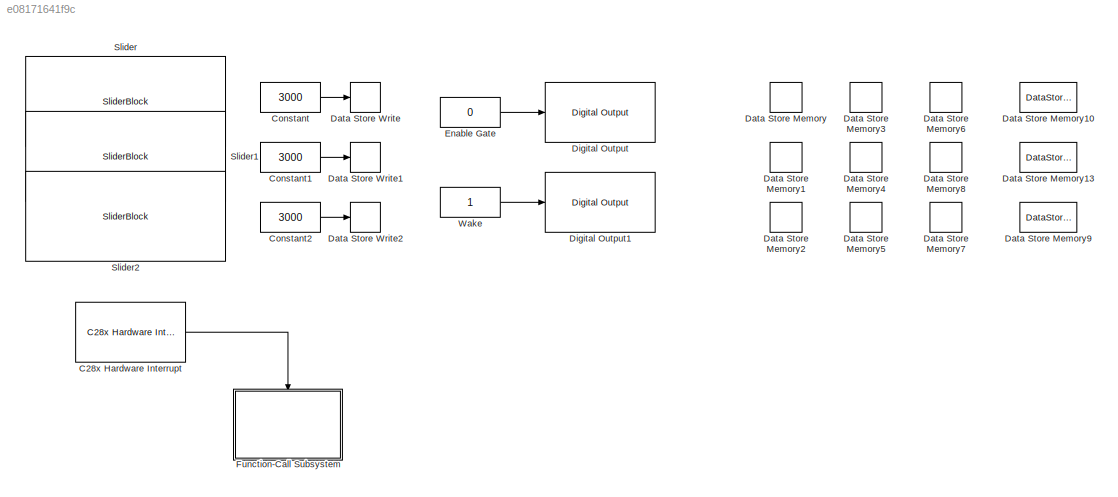
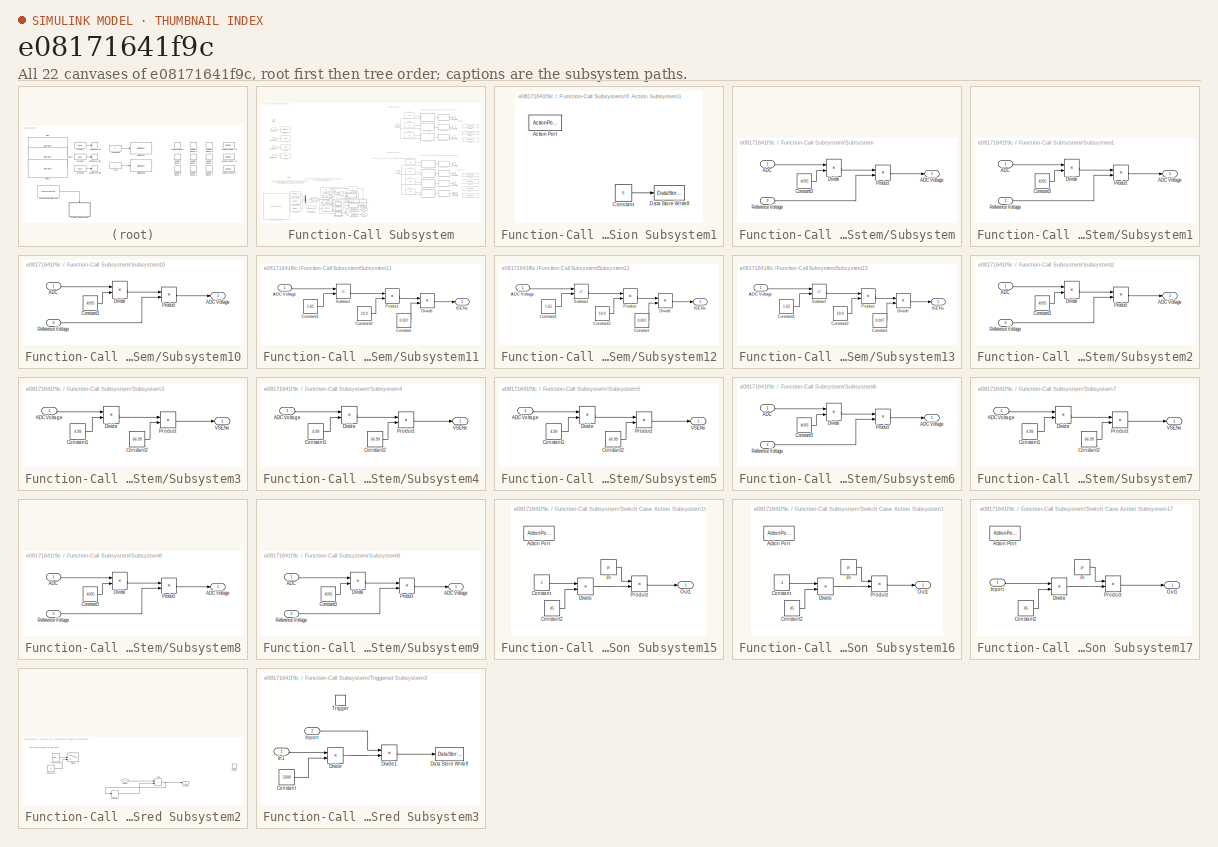
[diagram: thumbnail index - all 22 canvases of the model, root first then tree order]
MODEL slx_e08171641f9c
KIND model
CONFIG AbsTol = auto
CONFIG EnableMultiTasking = on
CONFIG FixedStep = auto
CONFIG MaxStep = auto
CONFIG MinStep = auto
CONFIG RelTol = 1e-3
CONFIG SampleTimeConstraint = Unconstrained
CONFIG SolverName = FixedStepDiscrete
CONFIG StartTime = 0.0
CONFIG StopTime = Inf
BLOCK [Reference] C28x Hardware Interrupt  REF=c2000lib/Scheduling/C28x Hardware Interrupt
  Ports = [0, 1]
  SourceBlock = c2000lib/Scheduling/C28x Hardware Interrupt
  SourceProductBaseCode = TIC2000
  SourceType = C28x Interrupt Block
BLOCK [Constant] Constant
  OutDataTypeStr = uint32
  Value = 3000
BLOCK [Constant] Constant1
  OutDataTypeStr = uint32
  Value = 3000
BLOCK [Constant] Constant2
  OutDataTypeStr = uint32
  Value = 3000
BLOCK [DataStoreMemory] Data Store Memory
  OutDataTypeStr = uint32
  ReadBeforeWriteMsg = warning
  ShowAdditionalParam = off
  WriteAfterReadMsg = warning
  WriteAfterWriteMsg = warning
BLOCK [DataStoreMemory] Data Store Memory1
  DataStoreName = B
  OutDataTypeStr = uint32
  ReadBeforeWriteMsg = warning
  ShowAdditionalParam = off
  WriteAfterReadMsg = warning
  WriteAfterWriteMsg = warning
BLOCK [DataStoreMemory] Data Store Memory10
  DataStoreName = MOT_VEL
  OutDataTypeStr = single
  ReadBeforeWriteMsg = warning
  ShowAdditionalParam = off
  WriteAfterReadMsg = warning
  WriteAfterWriteMsg = warning
BLOCK [DataStoreMemory] Data Store Memory13
  DataStoreName = MOT_POS
  OutDataTypeStr = single
  ReadBeforeWriteMsg = warning
  ShowAdditionalParam = off
  WriteAfterReadMsg = warning
  WriteAfterWriteMsg = warning
BLOCK [DataStoreMemory] Data Store Memory2
  DataStoreName = C
  OutDataTypeStr = uint32
  ReadBeforeWriteMsg = warning
  ShowAdditionalParam = off
  WriteAfterReadMsg = warning
  WriteAfterWriteMsg = warning
BLOCK [DataStoreMemory] Data Store Memory3
  DataStoreName = I_A
  OutDataTypeStr = single
  ReadBeforeWriteMsg = warning
  ShowAdditionalParam = off
  WriteAfterReadMsg = warning
  WriteAfterWriteMsg = warning
BLOCK [DataStoreMemory] Data Store Memory4
  DataStoreName = I_B
  OutDataTypeStr = single
  ReadBeforeWriteMsg = warning
  ShowAdditionalParam = off
  WriteAfterReadMsg = warning
  WriteAfterWriteMsg = warning
BLOCK [DataStoreMemory] Data Store Memory5
  DataStoreName = I_C
  OutDataTypeStr = single
  ReadBeforeWriteMsg = warning
  ShowAdditionalParam = off
  WriteAfterReadMsg = warning
  WriteAfterWriteMsg = warning
BLOCK [DataStoreMemory] Data Store Memory6
  DataStoreName = V_A
  OutDataTypeStr = single
  ReadBeforeWriteMsg = warning
  ShowAdditionalParam = off
  WriteAfterReadMsg = warning
  WriteAfterWriteMsg = warning
BLOCK [DataStoreMemory] Data Store Memory7
  DataStoreName = V_B
  OutDataTypeStr = single
  ReadBeforeWriteMsg = warning
  ShowAdditionalParam = off
  WriteAfterReadMsg = warning
  WriteAfterWriteMsg = warning
BLOCK [DataStoreMemory] Data Store Memory8
  DataStoreName = V_C
  OutDataTypeStr = single
  ReadBeforeWriteMsg = warning
  ShowAdditionalParam = off
  WriteAfterReadMsg = warning
  WriteAfterWriteMsg = warning
BLOCK [DataStoreMemory] Data Store Memory9
  DataStoreName = V_PVDD
  OutDataTypeStr = single
  ReadBeforeWriteMsg = warning
  ShowAdditionalParam = off
  WriteAfterReadMsg = warning
  WriteAfterWriteMsg = warning
BLOCK [DataStoreWrite] Data Store Write
  IndexOptions = Index vector (dialog)
  Indices = 1
  OutputSizes = 1
  Ports = [1]
BLOCK [DataStoreWrite] Data Store Write1
  DataStoreName = B
  IndexOptions = Index vector (dialog)
  Indices = 1
  OutputSizes = 1
  Ports = [1]
BLOCK [DataStoreWrite] Data Store Write2
  DataStoreName = C
  IndexOptions = Index vector (dialog)
  Indices = 1
  OutputSizes = 1
  Ports = [1]
BLOCK [Reference] Digital Output  REF=c2837xDlib/Digital Output
  Ports = [1]
  SourceBlock = c2837xDlib/Digital Output
  SourceProductBaseCode = TIC2000
  SourceType = F2837x GPIO Digital Output
  UserDataPersistent = on
BLOCK [Reference] Digital Output1  REF=c2837xDlib/Digital Output
  Ports = [1]
  SourceBlock = c2837xDlib/Digital Output
  SourceProductBaseCode = TIC2000
  SourceType = F2837x GPIO Digital Output
  UserDataPersistent = on
BLOCK [Constant] Enable Gate
  OutDataTypeStr = uint32
  Value = 0
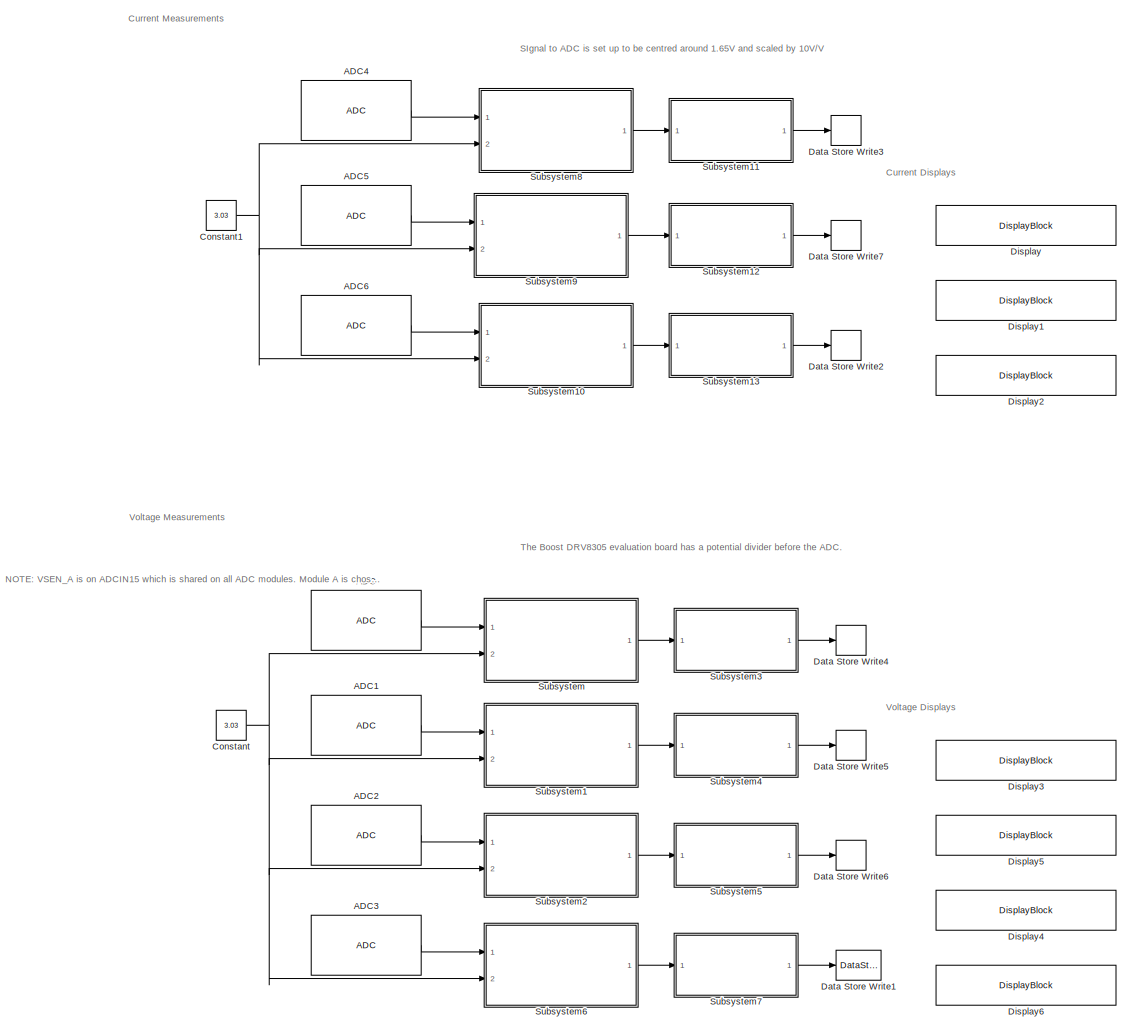
[diagram: Function-Call Subsystem - part 1/3, right side, full height]
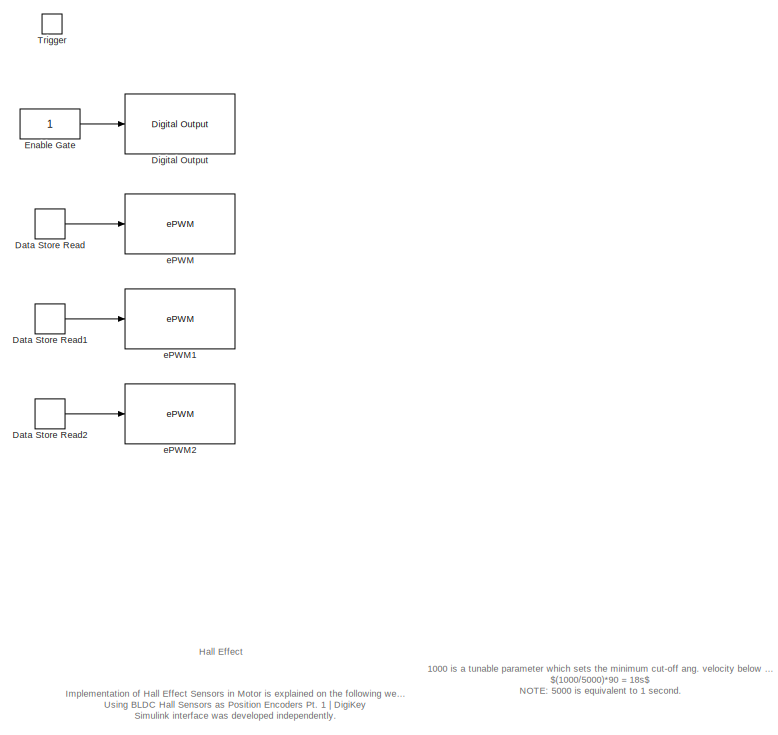
[diagram: Function-Call Subsystem - part 2/3, middle left region]
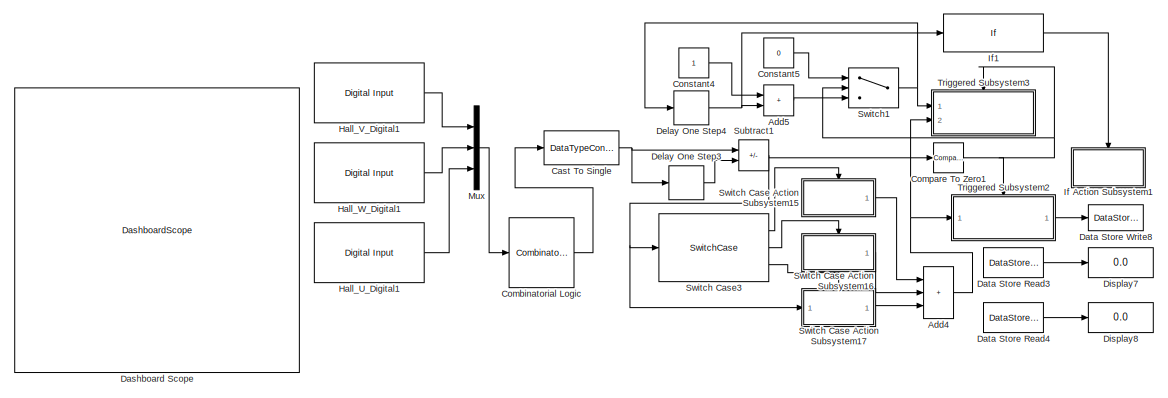
[diagram: Function-Call Subsystem - part 3/3, bottom left region]
BLOCK [SubSystem] Function-Call Subsystem
  Ports = [0, 0, 0, 1]
  RequestExecContextInheritance = off
  TreatAsAtomicUnit = on
BLOCK [Reference] Function-Call Subsystem/ADC  REF=c2802xlib/ADC
  Ports = [0, 1]
  SourceBlock = c2802xlib/ADC
  SourceProductName = Embedded Coder Support Package for Texas Instruments C2000 Processors
  SourceType = ADC Type 3-5
  UserDataPersistent = on
BLOCK [Reference] Function-Call Subsystem/ADC1  REF=c2802xlib/ADC
  Ports = [0, 1]
  SourceBlock = c2802xlib/ADC
  SourceProductName = Embedded Coder Support Package for Texas Instruments C2000 Processors
  SourceType = ADC Type 3-5
  UserDataPersistent = on
BLOCK [Reference] Function-Call Subsystem/ADC2  REF=c2802xlib/ADC
  Ports = [0, 1]
  SourceBlock = c2802xlib/ADC
  SourceProductName = Embedded Coder Support Package for Texas Instruments C2000 Processors
  SourceType = ADC Type 3-5
  UserDataPersistent = on
BLOCK [Reference] Function-Call Subsystem/ADC3  REF=c2802xlib/ADC
  Ports = [0, 1]
  SourceBlock = c2802xlib/ADC
  SourceProductName = Embedded Coder Support Package for Texas Instruments C2000 Processors
  SourceType = ADC Type 3-5
  UserDataPersistent = on
BLOCK [Reference] Function-Call Subsystem/ADC4  REF=c2802xlib/ADC
  Ports = [0, 1]
  SourceBlock = c2802xlib/ADC
  SourceProductName = Embedded Coder Support Package for Texas Instruments C2000 Processors
  SourceType = ADC Type 3-5
  UserDataPersistent = on
BLOCK [Reference] Function-Call Subsystem/ADC5  REF=c2802xlib/ADC
  Ports = [0, 1]
  SourceBlock = c2802xlib/ADC
  SourceProductName = Embedded Coder Support Package for Texas Instruments C2000 Processors
  SourceType = ADC Type 3-5
  UserDataPersistent = on
BLOCK [Reference] Function-Call Subsystem/ADC6  REF=c2802xlib/ADC
  Ports = [0, 1]
  SourceBlock = c2802xlib/ADC
  SourceProductName = Embedded Coder Support Package for Texas Instruments C2000 Processors
  SourceType = ADC Type 3-5
  UserDataPersistent = on
BLOCK [Sum] Function-Call Subsystem/Add4
  AccumDataTypeStr = single
  IconShape = rectangular
  Inputs = +++
  Ports = [3, 1]
BLOCK [Sum] Function-Call Subsystem/Add5
  IconShape = rectangular
  Ports = [2, 1]
BLOCK [DataTypeConversion] Function-Call Subsystem/Cast To Single
  OutDataTypeStr = single
  RndMeth = Floor
  SaturateOnIntegerOverflow = off
BLOCK [CombinatorialLogic] Function-Call Subsystem/Combinatorial Logic
  TruthTable = [0;1;3;2;5;6;4;7]
BLOCK [Reference] Function-Call Subsystem/Compare To Zero1  REF=simulink/Logic and Bit
Operations/Compare
To Zero
  Ports = [1, 1]
  SourceBlock = simulink/Logic and Bit\nOperations/Compare\nTo Zero
  SourceProductBaseCode = SL
  SourceType = Compare To Zero
BLOCK [Constant] Function-Call Subsystem/Constant
  OutDataTypeStr = single
  Value = 3.03
BLOCK [Constant] Function-Call Subsystem/Constant1
  OutDataTypeStr = single
  Value = 3.03
BLOCK [Constant] Function-Call Subsystem/Constant4
  OutDataTypeStr = single
BLOCK [Constant] Function-Call Subsystem/Constant5
  OutDataTypeStr = single
  Value = 0
BLOCK [DashboardScope] Function-Call Subsystem/Dashboard Scope
  ScaleAtStop = off
  TimeSpan = 5
  Ymax = 7
  Ymin = 0
BLOCK [DataStoreRead] Function-Call Subsystem/Data Store Read
  IndexOptions = Index vector (dialog)
  Indices = 1
  OutputSizes = 1
  Ports = [0, 1]
BLOCK [DataStoreRead] Function-Call Subsystem/Data Store Read1
  DataStoreName = B
  IndexOptions = Index vector (dialog)
  Indices = 1
  OutputSizes = 1
  Ports = [0, 1]
BLOCK [DataStoreRead] Function-Call Subsystem/Data Store Read2
  DataStoreName = C
  IndexOptions = Index vector (dialog)
  Indices = 1
  OutputSizes = 1
  Ports = [0, 1]
BLOCK [DataStoreRead] Function-Call Subsystem/Data Store Read3
  DataStoreName = MOT_POS
  IndexOptions = Index vector (dialog)
  Indices = 1
  OutputSizes = 1
  Ports = [0, 1]
BLOCK [DataStoreRead] Function-Call Subsystem/Data Store Read4
  DataStoreName = MOT_VEL
  IndexOptions = Index vector (dialog)
  Indices = 1
  OutputSizes = 1
  Ports = [0, 1]
BLOCK [DataStoreWrite] Function-Call Subsystem/Data Store Write1
  DataStoreName = V_PVDD
  IndexOptions = Index vector (dialog)
  Indices = 1
  OutputSizes = 1
  Ports = [1]
BLOCK [DataStoreWrite] Function-Call Subsystem/Data Store Write2
  DataStoreName = I_C
  IndexOptions = Index vector (dialog)
  Indices = 1
  OutputSizes = 1
  Ports = [1]
BLOCK [DataStoreWrite] Function-Call Subsystem/Data Store Write3
  DataStoreName = I_A
  IndexOptions = Index vector (dialog)
  Indices = 1
  OutputSizes = 1
  Ports = [1]
BLOCK [DataStoreWrite] Function-Call Subsystem/Data Store Write4
  DataStoreName = V_A
  IndexOptions = Index vector (dialog)
  Indices = 1
  OutputSizes = 1
  Ports = [1]
BLOCK [DataStoreWrite] Function-Call Subsystem/Data Store Write5
  DataStoreName = V_B
  IndexOptions = Index vector (dialog)
  Indices = 1
  OutputSizes = 1
  Ports = [1]
BLOCK [DataStoreWrite] Function-Call Subsystem/Data Store Write6
  DataStoreName = V_C
  IndexOptions = Index vector (dialog)
  Indices = 1
  OutputSizes = 1
  Ports = [1]
BLOCK [DataStoreWrite] Function-Call Subsystem/Data Store Write7
  DataStoreName = I_B
  IndexOptions = Index vector (dialog)
  Indices = 1
  OutputSizes = 1
  Ports = [1]
BLOCK [DataStoreWrite] Function-Call Subsystem/Data Store Write8
  DataStoreName = MOT_POS
  IndexOptions = Index vector (dialog)
  Indices = 1
  OutputSizes = 1
  Ports = [1]
BLOCK [Delay] Function-Call Subsystem/Delay One Step3
  DelayLength = 1
  InputPortMap = u0
  Ports = [1, 1]
BLOCK [Delay] Function-Call Subsystem/Delay One Step4
  DelayLength = 1
  InputPortMap = u0
  Ports = [1, 1]
BLOCK [Reference] Function-Call Subsystem/Digital Output  REF=c2837xDlib/Digital Output
  Ports = [1]
  SourceBlock = c2837xDlib/Digital Output
  SourceProductBaseCode = TIC2000
  SourceType = F2837x GPIO Digital Output
  UserDataPersistent = on
BLOCK [DisplayBlock] Function-Call Subsystem/Display
  LabelPosition = Hide
  Transparency = 1
BLOCK [DisplayBlock] Function-Call Subsystem/Display1
  LabelPosition = Hide
  Transparency = 1
BLOCK [DisplayBlock] Function-Call Subsystem/Display2
  LabelPosition = Hide
  Transparency = 1
BLOCK [DisplayBlock] Function-Call Subsystem/Display3
  LabelPosition = Hide
  Transparency = 1
BLOCK [DisplayBlock] Function-Call Subsystem/Display4
  LabelPosition = Hide
  Transparency = 1
BLOCK [DisplayBlock] Function-Call Subsystem/Display5
  LabelPosition = Hide
  Transparency = 1
BLOCK [DisplayBlock] Function-Call Subsystem/Display6
  LabelPosition = Hide
  Transparency = 1
BLOCK [Display] Function-Call Subsystem/Display7
  Decimation = 1
  Ports = [1]
BLOCK [Display] Function-Call Subsystem/Display8
  Decimation = 1
  Ports = [1]
BLOCK [Constant] Function-Call Subsystem/Enable Gate
  OutDataTypeStr = uint32
BLOCK [Reference] Function-Call Subsystem/Hall_U_Digital1  REF=c2837xDlib/Digital Input
  Ports = [0, 1]
  SourceBlock = c2837xDlib/Digital Input
  SourceProductBaseCode = TIC2000
  SourceType = F2837x GPIO Digital Input
  UserDataPersistent = on
BLOCK [Reference] Function-Call Subsystem/Hall_V_Digital1  REF=c2837xDlib/Digital Input
  Ports = [0, 1]
  SourceBlock = c2837xDlib/Digital Input
  SourceProductBaseCode = TIC2000
  SourceType = F2837x GPIO Digital Input
  UserDataPersistent = on
BLOCK [Reference] Function-Call Subsystem/Hall_W_Digital1  REF=c2837xDlib/Digital Input
  Ports = [0, 1]
  SourceBlock = c2837xDlib/Digital Input
  SourceProductBaseCode = TIC2000
  SourceType = F2837x GPIO Digital Input
  UserDataPersistent = on
BLOCK [SubSystem] Function-Call Subsystem/If Action Subsystem1
  Ports = [0, 0, 0, 0, 0, 0, 0, 1]
  RequestExecContextInheritance = off
  TreatAsAtomicUnit = on
BLOCK [ActionPort] Function-Call Subsystem/If Action Subsystem1/Action Port
  ActionPortLabel = if(u1 > 1000)
  InitializeStates = reset
BLOCK [Constant] Function-Call Subsystem/If Action Subsystem1/Constant
  OutDataTypeStr = single
  SampleTime = -1
  Value = 0
BLOCK [DataStoreWrite] Function-Call Subsystem/If Action Subsystem1/Data Store Write8
  DataStoreName = MOT_VEL
  IndexOptions = Index vector (dialog)
  Indices = 1
  OutputSizes = 1
  Ports = [1]
BLOCK [If] Function-Call Subsystem/If1
  IfExpression = u1 > 1000
  Ports = [1, 1]
  ShowElse = off
BLOCK [Mux] Function-Call Subsystem/Mux
  DisplayOption = bar
  Inputs = 3
  Ports = [3, 1]
BLOCK [SubSystem] Function-Call Subsystem/Subsystem
  Ports = [2, 1]
  RequestExecContextInheritance = off
BLOCK [Inport] Function-Call Subsystem/Subsystem/ADC
BLOCK [Outport] Function-Call Subsystem/Subsystem/ADC Voltage
BLOCK [Constant] Function-Call Subsystem/Subsystem/Constant3
  OutDataTypeStr = single
  Value = 4095
BLOCK [Product] Function-Call Subsystem/Subsystem/Divide
  Inputs = */
  OutDataTypeStr = single
  Ports = [2, 1]
  RndMeth = Zero
  SaturateOnIntegerOverflow = on
BLOCK [Product] Function-Call Subsystem/Subsystem/Product
  Ports = [2, 1]
BLOCK [Inport] Function-Call Subsystem/Subsystem/Reference Voltage
  Port = 2
BLOCK [SubSystem] Function-Call Subsystem/Subsystem1
  Ports = [2, 1]
  RequestExecContextInheritance = off
BLOCK [Inport] Function-Call Subsystem/Subsystem1/ADC
BLOCK [Outport] Function-Call Subsystem/Subsystem1/ADC Voltage
BLOCK [Constant] Function-Call Subsystem/Subsystem1/Constant3
  OutDataTypeStr = single
  Value = 4095
BLOCK [Product] Function-Call Subsystem/Subsystem1/Divide
  Inputs = */
  OutDataTypeStr = single
  Ports = [2, 1]
  RndMeth = Zero
  SaturateOnIntegerOverflow = on
BLOCK [Product] Function-Call Subsystem/Subsystem1/Product
  Ports = [2, 1]
BLOCK [Inport] Function-Call Subsystem/Subsystem1/Reference Voltage
  Port = 2
BLOCK [SubSystem] Function-Call Subsystem/Subsystem10
  Ports = [2, 1]
  RequestExecContextInheritance = off
BLOCK [Inport] Function-Call Subsystem/Subsystem10/ADC
BLOCK [Outport] Function-Call Subsystem/Subsystem10/ADC Voltage
BLOCK [Constant] Function-Call Subsystem/Subsystem10/Constant3
  OutDataTypeStr = single
  Value = 4095
BLOCK [Product] Function-Call Subsystem/Subsystem10/Divide
  Inputs = */
  OutDataTypeStr = single
  Ports = [2, 1]
  RndMeth = Zero
  SaturateOnIntegerOverflow = on
BLOCK [Product] Function-Call Subsystem/Subsystem10/Product
  Ports = [2, 1]
BLOCK [Inport] Function-Call Subsystem/Subsystem10/Reference Voltage
  Port = 2
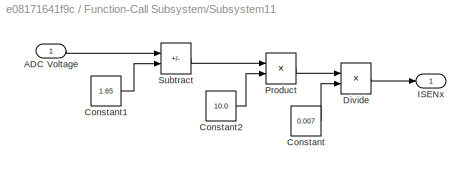
BLOCK [SubSystem] Function-Call Subsystem/Subsystem11
  Ports = [1, 1]
  RequestExecContextInheritance = off
BLOCK [Inport] Function-Call Subsystem/Subsystem11/ADC Voltage
BLOCK [Constant] Function-Call Subsystem/Subsystem11/Constant
  OutDataTypeStr = single
  Value = 0.007
BLOCK [Constant] Function-Call Subsystem/Subsystem11/Constant1
  OutDataTypeStr = single
  Value = 1.65
BLOCK [Constant] Function-Call Subsystem/Subsystem11/Constant2
  OutDataTypeStr = single
  Value = 10.0
BLOCK [Product] Function-Call Subsystem/Subsystem11/Divide
  Inputs = */
  Ports = [2, 1]
BLOCK [Outport] Function-Call Subsystem/Subsystem11/ISENx
BLOCK [Product] Function-Call Subsystem/Subsystem11/Product
  Ports = [2, 1]
BLOCK [Sum] Function-Call Subsystem/Subsystem11/Subtract
  IconShape = rectangular
  Inputs = +-
  OutDataTypeStr = single
  Ports = [2, 1]
BLOCK [SubSystem] Function-Call Subsystem/Subsystem12
  Ports = [1, 1]
  RequestExecContextInheritance = off
BLOCK [Inport] Function-Call Subsystem/Subsystem12/ADC Voltage
BLOCK [Constant] Function-Call Subsystem/Subsystem12/Constant
  OutDataTypeStr = single
  Value = 0.007
BLOCK [Constant] Function-Call Subsystem/Subsystem12/Constant1
  OutDataTypeStr = single
  Value = 1.65
BLOCK [Constant] Function-Call Subsystem/Subsystem12/Constant2
  OutDataTypeStr = single
  Value = 10.0
BLOCK [Product] Function-Call Subsystem/Subsystem12/Divide
  Inputs = */
  Ports = [2, 1]
BLOCK [Outport] Function-Call Subsystem/Subsystem12/ISENx
BLOCK [Product] Function-Call Subsystem/Subsystem12/Product
  Ports = [2, 1]
BLOCK [Sum] Function-Call Subsystem/Subsystem12/Subtract
  IconShape = rectangular
  Inputs = +-
  OutDataTypeStr = single
  Ports = [2, 1]
BLOCK [SubSystem] Function-Call Subsystem/Subsystem13
  Ports = [1, 1]
  RequestExecContextInheritance = off
BLOCK [Inport] Function-Call Subsystem/Subsystem13/ADC Voltage
BLOCK [Constant] Function-Call Subsystem/Subsystem13/Constant
  OutDataTypeStr = single
  Value = 0.007
BLOCK [Constant] Function-Call Subsystem/Subsystem13/Constant1
  OutDataTypeStr = single
  Value = 1.65
BLOCK [Constant] Function-Call Subsystem/Subsystem13/Constant2
  OutDataTypeStr = single
  Value = 10.0
BLOCK [Product] Function-Call Subsystem/Subsystem13/Divide
  Inputs = */
  Ports = [2, 1]
BLOCK [Outport] Function-Call Subsystem/Subsystem13/ISENx
BLOCK [Product] Function-Call Subsystem/Subsystem13/Product
  Ports = [2, 1]
BLOCK [Sum] Function-Call Subsystem/Subsystem13/Subtract
  IconShape = rectangular
  Inputs = +-
  OutDataTypeStr = single
  Ports = [2, 1]
BLOCK [SubSystem] Function-Call Subsystem/Subsystem2
  Ports = [2, 1]
  RequestExecContextInheritance = off
BLOCK [Inport] Function-Call Subsystem/Subsystem2/ADC
BLOCK [Outport] Function-Call Subsystem/Subsystem2/ADC Voltage
BLOCK [Constant] Function-Call Subsystem/Subsystem2/Constant3
  OutDataTypeStr = single
  Value = 4095
BLOCK [Product] Function-Call Subsystem/Subsystem2/Divide
  Inputs = */
  OutDataTypeStr = single
  Ports = [2, 1]
  RndMeth = Zero
  SaturateOnIntegerOverflow = on
BLOCK [Product] Function-Call Subsystem/Subsystem2/Product
  Ports = [2, 1]
BLOCK [Inport] Function-Call Subsystem/Subsystem2/Reference Voltage
  Port = 2
BLOCK [SubSystem] Function-Call Subsystem/Subsystem3
  Ports = [1, 1]
  RequestExecContextInheritance = off
BLOCK [Inport] Function-Call Subsystem/Subsystem3/ADC Voltage
BLOCK [Constant] Function-Call Subsystem/Subsystem3/Constant1
  OutDataTypeStr = single
  Value = 4.99
BLOCK [Constant] Function-Call Subsystem/Subsystem3/Constant2
  OutDataTypeStr = single
  Value = 66.99
BLOCK [Product] Function-Call Subsystem/Subsystem3/Divide
  Inputs = */
  OutDataTypeStr = single
  Ports = [2, 1]
  RndMeth = Zero
  SaturateOnIntegerOverflow = on
BLOCK [Product] Function-Call Subsystem/Subsystem3/Product
  Ports = [2, 1]
BLOCK [Outport] Function-Call Subsystem/Subsystem3/VSENx
BLOCK [SubSystem] Function-Call Subsystem/Subsystem4
  Ports = [1, 1]
  RequestExecContextInheritance = off
BLOCK [Inport] Function-Call Subsystem/Subsystem4/ADC Voltage
BLOCK [Constant] Function-Call Subsystem/Subsystem4/Constant1
  OutDataTypeStr = single
  Value = 4.99
BLOCK [Constant] Function-Call Subsystem/Subsystem4/Constant2
  OutDataTypeStr = single
  Value = 66.99
BLOCK [Product] Function-Call Subsystem/Subsystem4/Divide
  Inputs = */
  OutDataTypeStr = single
  Ports = [2, 1]
  RndMeth = Zero
  SaturateOnIntegerOverflow = on
BLOCK [Product] Function-Call Subsystem/Subsystem4/Product
  Ports = [2, 1]
BLOCK [Outport] Function-Call Subsystem/Subsystem4/VSENx
BLOCK [SubSystem] Function-Call Subsystem/Subsystem5
  Ports = [1, 1]
  RequestExecContextInheritance = off
BLOCK [Inport] Function-Call Subsystem/Subsystem5/ADC Voltage
BLOCK [Constant] Function-Call Subsystem/Subsystem5/Constant1
  OutDataTypeStr = single
  Value = 4.99
BLOCK [Constant] Function-Call Subsystem/Subsystem5/Constant2
  OutDataTypeStr = single
  Value = 66.99
BLOCK [Product] Function-Call Subsystem/Subsystem5/Divide
  Inputs = */
  OutDataTypeStr = single
  Ports = [2, 1]
  RndMeth = Zero
  SaturateOnIntegerOverflow = on
BLOCK [Product] Function-Call Subsystem/Subsystem5/Product
  Ports = [2, 1]
BLOCK [Outport] Function-Call Subsystem/Subsystem5/VSENx
BLOCK [SubSystem] Function-Call Subsystem/Subsystem6
  Ports = [2, 1]
  RequestExecContextInheritance = off
BLOCK [Inport] Function-Call Subsystem/Subsystem6/ADC
BLOCK [Outport] Function-Call Subsystem/Subsystem6/ADC Voltage
BLOCK [Constant] Function-Call Subsystem/Subsystem6/Constant3
  OutDataTypeStr = single
  Value = 4095
BLOCK [Product] Function-Call Subsystem/Subsystem6/Divide
  Inputs = */
  OutDataTypeStr = single
  Ports = [2, 1]
  RndMeth = Zero
  SaturateOnIntegerOverflow = on
BLOCK [Product] Function-Call Subsystem/Subsystem6/Product
  Ports = [2, 1]
BLOCK [Inport] Function-Call Subsystem/Subsystem6/Reference Voltage
  Port = 2
BLOCK [SubSystem] Function-Call Subsystem/Subsystem7
  Ports = [1, 1]
  RequestExecContextInheritance = off
BLOCK [Inport] Function-Call Subsystem/Subsystem7/ADC Voltage
BLOCK [Constant] Function-Call Subsystem/Subsystem7/Constant1
  OutDataTypeStr = single
  Value = 4.99
BLOCK [Constant] Function-Call Subsystem/Subsystem7/Constant2
  OutDataTypeStr = single
  Value = 66.99
BLOCK [Product] Function-Call Subsystem/Subsystem7/Divide
  Inputs = */
  OutDataTypeStr = single
  Ports = [2, 1]
  RndMeth = Zero
  SaturateOnIntegerOverflow = on
BLOCK [Product] Function-Call Subsystem/Subsystem7/Product
  Ports = [2, 1]
BLOCK [Outport] Function-Call Subsystem/Subsystem7/VSENx
BLOCK [SubSystem] Function-Call Subsystem/Subsystem8
  Ports = [2, 1]
  RequestExecContextInheritance = off
BLOCK [Inport] Function-Call Subsystem/Subsystem8/ADC
BLOCK [Outport] Function-Call Subsystem/Subsystem8/ADC Voltage
BLOCK [Constant] Function-Call Subsystem/Subsystem8/Constant3
  OutDataTypeStr = single
  Value = 4095
BLOCK [Product] Function-Call Subsystem/Subsystem8/Divide
  Inputs = */
  OutDataTypeStr = single
  Ports = [2, 1]
  RndMeth = Zero
  SaturateOnIntegerOverflow = on
BLOCK [Product] Function-Call Subsystem/Subsystem8/Product
  Ports = [2, 1]
BLOCK [Inport] Function-Call Subsystem/Subsystem8/Reference Voltage
  Port = 2
BLOCK [SubSystem] Function-Call Subsystem/Subsystem9
  Ports = [2, 1]
  RequestExecContextInheritance = off
BLOCK [Inport] Function-Call Subsystem/Subsystem9/ADC
BLOCK [Outport] Function-Call Subsystem/Subsystem9/ADC Voltage
BLOCK [Constant] Function-Call Subsystem/Subsystem9/Constant3
  OutDataTypeStr = single
  Value = 4095
BLOCK [Product] Function-Call Subsystem/Subsystem9/Divide
  Inputs = */
  OutDataTypeStr = single
  Ports = [2, 1]
  RndMeth = Zero
  SaturateOnIntegerOverflow = on
BLOCK [Product] Function-Call Subsystem/Subsystem9/Product
  Ports = [2, 1]
BLOCK [Inport] Function-Call Subsystem/Subsystem9/Reference Voltage
  Port = 2
BLOCK [Sum] Function-Call Subsystem/Subtract1
  IconShape = rectangular
  Inputs = +-
  Ports = [2, 1]
BLOCK [SubSystem] Function-Call Subsystem/Switch Case Action Subsystem15
  Ports = [0, 1, 0, 0, 0, 0, 0, 1]
  RequestExecContextInheritance = off
  TreatAsAtomicUnit = on
BLOCK [ActionPort] Function-Call Subsystem/Switch Case Action Subsystem15/Action Port
  ActionPortLabel = case [ -5 ]:
BLOCK [Constant] Function-Call Subsystem/Switch Case Action Subsystem15/Constant
  OutDataTypeStr = single
BLOCK [Constant] Function-Call Subsystem/Switch Case Action Subsystem15/Constant2
  OutDataTypeStr = single
  Value = 45
BLOCK [Product] Function-Call Subsystem/Switch Case Action Subsystem15/Divide
  Inputs = */
  Ports = [2, 1]
  RndMeth = Zero
  SaturateOnIntegerOverflow = on
BLOCK [Outport] Function-Call Subsystem/Switch Case Action Subsystem15/Out1
  InitialOutput = 0
  OutputWhenDisabled = reset
BLOCK [Constant] Function-Call Subsystem/Switch Case Action Subsystem15/Pi
  OutDataTypeStr = single
  Value = pi
BLOCK [Product] Function-Call Subsystem/Switch Case Action Subsystem15/Product
  Ports = [2, 1]
BLOCK [SubSystem] Function-Call Subsystem/Switch Case Action Subsystem16
  Ports = [0, 1, 0, 0, 0, 0, 0, 1]
  RequestExecContextInheritance = off
  TreatAsAtomicUnit = on
BLOCK [ActionPort] Function-Call Subsystem/Switch Case Action Subsystem16/Action Port
  ActionPortLabel = case [ 5 ]:
BLOCK [Constant] Function-Call Subsystem/Switch Case Action Subsystem16/Constant
  OutDataTypeStr = single
  Value = -1
BLOCK [Constant] Function-Call Subsystem/Switch Case Action Subsystem16/Constant2
  OutDataTypeStr = single
  Value = 45
BLOCK [Product] Function-Call Subsystem/Switch Case Action Subsystem16/Divide
  Inputs = */
  Ports = [2, 1]
  RndMeth = Zero
  SaturateOnIntegerOverflow = on
BLOCK [Outport] Function-Call Subsystem/Switch Case Action Subsystem16/Out1
  InitialOutput = 0
  OutputWhenDisabled = reset
BLOCK [Constant] Function-Call Subsystem/Switch Case Action Subsystem16/Pi
  OutDataTypeStr = single
  Value = pi
BLOCK [Product] Function-Call Subsystem/Switch Case Action Subsystem16/Product
  Ports = [2, 1]
BLOCK [SubSystem] Function-Call Subsystem/Switch Case Action Subsystem17
  Ports = [1, 1, 0, 0, 0, 0, 0, 1]
  RequestExecContextInheritance = off
  TreatAsAtomicUnit = on
BLOCK [ActionPort] Function-Call Subsystem/Switch Case Action Subsystem17/Action Port
  ActionPortLabel = default:
BLOCK [Constant] Function-Call Subsystem/Switch Case Action Subsystem17/Constant2
  OutDataTypeStr = single
  Value = 45
BLOCK [Product] Function-Call Subsystem/Switch Case Action Subsystem17/Divide
  Inputs = */
  Ports = [2, 1]
  RndMeth = Zero
  SaturateOnIntegerOverflow = on
BLOCK [Inport] Function-Call Subsystem/Switch Case Action Subsystem17/Inport
BLOCK [Outport] Function-Call Subsystem/Switch Case Action Subsystem17/Out1
  InitialOutput = 0
  OutputWhenDisabled = reset
BLOCK [Constant] Function-Call Subsystem/Switch Case Action Subsystem17/Pi
  OutDataTypeStr = single
  Value = pi
BLOCK [Product] Function-Call Subsystem/Switch Case Action Subsystem17/Product
  Ports = [2, 1]
BLOCK [SwitchCase] Function-Call Subsystem/Switch Case3
  CaseConditions = {-5,5}
  Ports = [1, 3]
BLOCK [Switch] Function-Call Subsystem/Switch1
  Criteria = u2 ~= 0
  InputSameDT = off
  SaturateOnIntegerOverflow = off
BLOCK [TriggerPort] Function-Call Subsystem/Trigger
  PortDimensions = 1
  Ports = []
  StatesWhenEnabling = held
  TriggerType = function-call
  VariantControl = Variant
BLOCK [SubSystem] Function-Call Subsystem/Triggered Subsystem2
  Ports = [1, 1, 0, 1]
  RequestExecContextInheritance = off
  TreatAsAtomicUnit = on
BLOCK [Sum] Function-Call Subsystem/Triggered Subsystem2/Add
  IconShape = rectangular
  Ports = [2, 1]
BLOCK [Constant] Function-Call Subsystem/Triggered Subsystem2/Constant1
  Commented = on
  OutDataTypeStr = single
  Value = 0
BLOCK [Inport] Function-Call Subsystem/Triggered Subsystem2/Inport
  OutDataTypeStr = single
BLOCK [Reference] Function-Call Subsystem/Triggered Subsystem2/Interval Test  REF=simulink/Logic and Bit
Operations/Interval Test
  Commented = on
  Ports = [1, 1]
  SourceBlock = simulink/Logic and Bit\nOperations/Interval Test
  SourceProductBaseCode = SL
  SourceType = Interval Test
BLOCK [Memory] Function-Call Subsystem/Triggered Subsystem2/Memory
  InheritSampleTime = on
BLOCK [Outport] Function-Call Subsystem/Triggered Subsystem2/Outport
  InitialOutput = 0
BLOCK [Switch] Function-Call Subsystem/Triggered Subsystem2/Switch
  Commented = on
  Criteria = u2 ~= 0
  InputSameDT = off
  OutDataTypeStr = single
  SaturateOnIntegerOverflow = off
  Threshold = 90
BLOCK [TriggerPort] Function-Call Subsystem/Triggered Subsystem2/Trigger
  Ports = []
  StatesWhenEnabling = held
  VariantControl = (inherit)
BLOCK [SubSystem] Function-Call Subsystem/Triggered Subsystem3
  Ports = [2, 0, 0, 1]
  RequestExecContextInheritance = off
  TreatAsAtomicUnit = on
BLOCK [Constant] Function-Call Subsystem/Triggered Subsystem3/Constant
  OutDataTypeStr = single
  Value = 5000
BLOCK [DataStoreWrite] Function-Call Subsystem/Triggered Subsystem3/Data Store Write8
  DataStoreName = MOT_VEL
  IndexOptions = Index vector (dialog)
  Indices = 1
  OutputSizes = 1
  Ports = [1]
BLOCK [Product] Function-Call Subsystem/Triggered Subsystem3/Divide
  Inputs = */
  Ports = [2, 1]
BLOCK [Product] Function-Call Subsystem/Triggered Subsystem3/Divide1
  Inputs = */
  Ports = [2, 1]
BLOCK [Inport] Function-Call Subsystem/Triggered Subsystem3/In1
  LatchByDelayingOutsideSignal = on
BLOCK [Inport] Function-Call Subsystem/Triggered Subsystem3/Inport
  Port = 2
BLOCK [TriggerPort] Function-Call Subsystem/Triggered Subsystem3/Trigger
  Ports = []
  StatesWhenEnabling = held
  VariantControl = (inherit)
BLOCK [Reference] Function-Call Subsystem/ePWM  REF=c2802xlib/ePWM
  Ports = [1]
  SourceBlock = c2802xlib/ePWM
  SourceProductName = Embedded Coder Support Package for Texas Instruments C2000 Processors
  SourceType = ePWM Type 1-4
  UserDataPersistent = on
BLOCK [Reference] Function-Call Subsystem/ePWM1  REF=c2802xlib/ePWM
  Ports = [1]
  SourceBlock = c2802xlib/ePWM
  SourceProductName = Embedded Coder Support Package for Texas Instruments C2000 Processors
  SourceType = ePWM Type 1-4
  UserDataPersistent = on
BLOCK [Reference] Function-Call Subsystem/ePWM2  REF=c2802xlib/ePWM
  Ports = [1]
  SourceBlock = c2802xlib/ePWM
  SourceProductName = Embedded Coder Support Package for Texas Instruments C2000 Processors
  SourceType = ePWM Type 1-4
  UserDataPersistent = on
BLOCK [SliderBlock] Slider
  ScaleMax = 10e3
BLOCK [SliderBlock] Slider1
  ScaleMax = 10e3
BLOCK [SliderBlock] Slider2
  ScaleMax = 10e3
BLOCK [Constant] Wake
  OutDataTypeStr = uint32
ANNOTATION Function-Call Subsystem: NOTE: VSEN_A is on ADCIN15 which is shared on all ADC modules. Module A is chosen.
ANNOTATION Function-Call Subsystem: SIgnal to ADC is set up to be centred around 1.65V and scaled by 10V/V
ANNOTATION Function-Call Subsystem: Implementation of Hall Effect Sensors in Motor is explained on the following website: Using BLDC Hall Sensors as Position Encoders Pt. 1 | DigiKey Simulink interface was developed independently.
ANNOTATION Function-Call Subsystem: The Boost DRV8305 evaluation board has a potential divider before the ADC.
ANNOTATION Function-Call Subsystem: 1000 is a tunable parameter which sets the minimum cut-off ang. velocity below which the system sets the value to be 0 rad/s. The value 1000 relates to a rotation which takes 18s. $(1000/5000)*90 = 18s$ NOTE: 5000 is equivalent to 1 second.
ANNOTATION Function-Call Subsystem: Current Displays
ANNOTATION Function-Call Subsystem: Current Measurements
ANNOTATION Function-Call Subsystem: Hall Effect
ANNOTATION Function-Call Subsystem: Voltage Displays
ANNOTATION Function-Call Subsystem: Voltage Measurements
ANNOTATION Function-Call Subsystem/Triggered Subsystem2: Limit angle between certain values
LINE C28x Hardware Interrupt:1 -> Function-Call Subsystem:trigger
LINE Constant1:1 -> Data Store Write1:1
LINE Constant2:1 -> Data Store Write2:1
LINE Constant:1 -> Data Store Write:1
LINE Enable Gate:1 -> Digital Output:1
LINE Function-Call Subsystem/ADC1:1 -> Function-Call Subsystem/Subsystem1:1
LINE Function-Call Subsystem/ADC2:1 -> Function-Call Subsystem/Subsystem2:1
LINE Function-Call Subsystem/ADC3:1 -> Function-Call Subsystem/Subsystem6:1
LINE Function-Call Subsystem/ADC4:1 -> Function-Call Subsystem/Subsystem8:1
LINE Function-Call Subsystem/ADC5:1 -> Function-Call Subsystem/Subsystem9:1
LINE Function-Call Subsystem/ADC6:1 -> Function-Call Subsystem/Subsystem10:1
LINE Function-Call Subsystem/ADC:1 -> Function-Call Subsystem/Subsystem:1
NET Function-Call Subsystem/Add4:1 -> Function-Call Subsystem/Triggered Subsystem2:1, Function-Call Subsystem/Triggered Subsystem3:2
LINE Function-Call Subsystem/Add5:1 -> Function-Call Subsystem/Switch1:3
NET Function-Call Subsystem/Cast To Single:1 -> Function-Call Subsystem/Delay One Step3:1, Function-Call Subsystem/Subtract1:1
LINE Function-Call Subsystem/Combinatorial Logic:1 -> Function-Call Subsystem/Cast To Single:1
NET Function-Call Subsystem/Compare To Zero1:1 -> Function-Call Subsystem/Switch1:2, Function-Call Subsystem/Triggered Subsystem2:trigger, Function-Call Subsystem/Triggered Subsystem3:trigger
NET Function-Call Subsystem/Constant1:1 -> Function-Call Subsystem/Subsystem10:2, Function-Call Subsystem/Subsystem8:2, Function-Call Subsystem/Subsystem9:2
LINE Function-Call Subsystem/Constant4:1 -> Function-Call Subsystem/Add5:1
LINE Function-Call Subsystem/Constant5:1 -> Function-Call Subsystem/Switch1:1
NET Function-Call Subsystem/Constant:1 -> Function-Call Subsystem/Subsystem1:2, Function-Call Subsystem/Subsystem2:2, Function-Call Subsystem/Subsystem6:2, Function-Call Subsystem/Subsystem:2
LINE Function-Call Subsystem/Data Store Read1:1 -> Function-Call Subsystem/ePWM1:1
LINE Function-Call Subsystem/Data Store Read2:1 -> Function-Call Subsystem/ePWM2:1
LINE Function-Call Subsystem/Data Store Read3:1 -> Function-Call Subsystem/Display7:1
LINE Function-Call Subsystem/Data Store Read4:1 -> Function-Call Subsystem/Display8:1
LINE Function-Call Subsystem/Data Store Read:1 -> Function-Call Subsystem/ePWM:1
LINE Function-Call Subsystem/Delay One Step3:1 -> Function-Call Subsystem/Subtract1:2
NET Function-Call Subsystem/Delay One Step4:1 -> Function-Call Subsystem/Add5:2, Function-Call Subsystem/If1:1
LINE Function-Call Subsystem/Enable Gate:1 -> Function-Call Subsystem/Digital Output:1
LINE Function-Call Subsystem/Hall_U_Digital1:1 -> Function-Call Subsystem/Mux:3
LINE Function-Call Subsystem/Hall_V_Digital1:1 -> Function-Call Subsystem/Mux:1
LINE Function-Call Subsystem/Hall_W_Digital1:1 -> Function-Call Subsystem/Mux:2
LINE Function-Call Subsystem/If Action Subsystem1/Constant:1 -> Function-Call Subsystem/If Action Subsystem1/Data Store Write8:1
LINE Function-Call Subsystem/If1:1 -> Function-Call Subsystem/If Action Subsystem1:ifaction
LINE Function-Call Subsystem/Mux:1 -> Function-Call Subsystem/Combinatorial Logic:1
LINE Function-Call Subsystem/Subsystem/ADC:1 -> Function-Call Subsystem/Subsystem/Divide:1
LINE Function-Call Subsystem/Subsystem/Constant3:1 -> Function-Call Subsystem/Subsystem/Divide:2
LINE Function-Call Subsystem/Subsystem/Divide:1 -> Function-Call Subsystem/Subsystem/Product:1
LINE Function-Call Subsystem/Subsystem/Product:1 -> Function-Call Subsystem/Subsystem/ADC Voltage:1
LINE Function-Call Subsystem/Subsystem/Reference Voltage:1 -> Function-Call Subsystem/Subsystem/Product:2
LINE Function-Call Subsystem/Subsystem1/ADC:1 -> Function-Call Subsystem/Subsystem1/Divide:1
LINE Function-Call Subsystem/Subsystem1/Constant3:1 -> Function-Call Subsystem/Subsystem1/Divide:2
LINE Function-Call Subsystem/Subsystem1/Divide:1 -> Function-Call Subsystem/Subsystem1/Product:1
LINE Function-Call Subsystem/Subsystem1/Product:1 -> Function-Call Subsystem/Subsystem1/ADC Voltage:1
LINE Function-Call Subsystem/Subsystem1/Reference Voltage:1 -> Function-Call Subsystem/Subsystem1/Product:2
LINE Function-Call Subsystem/Subsystem10/ADC:1 -> Function-Call Subsystem/Subsystem10/Divide:1
LINE Function-Call Subsystem/Subsystem10/Constant3:1 -> Function-Call Subsystem/Subsystem10/Divide:2
LINE Function-Call Subsystem/Subsystem10/Divide:1 -> Function-Call Subsystem/Subsystem10/Product:1
LINE Function-Call Subsystem/Subsystem10/Product:1 -> Function-Call Subsystem/Subsystem10/ADC Voltage:1
LINE Function-Call Subsystem/Subsystem10/Reference Voltage:1 -> Function-Call Subsystem/Subsystem10/Product:2
LINE Function-Call Subsystem/Subsystem10:1 -> Function-Call Subsystem/Subsystem13:1
LINE Function-Call Subsystem/Subsystem11/ADC Voltage:1 -> Function-Call Subsystem/Subsystem11/Subtract:1
LINE Function-Call Subsystem/Subsystem11/Constant1:1 -> Function-Call Subsystem/Subsystem11/Subtract:2
LINE Function-Call Subsystem/Subsystem11/Constant2:1 -> Function-Call Subsystem/Subsystem11/Product:2
LINE Function-Call Subsystem/Subsystem11/Constant:1 -> Function-Call Subsystem/Subsystem11/Divide:2
LINE Function-Call Subsystem/Subsystem11/Divide:1 -> Function-Call Subsystem/Subsystem11/ISENx:1
LINE Function-Call Subsystem/Subsystem11/Product:1 -> Function-Call Subsystem/Subsystem11/Divide:1
LINE Function-Call Subsystem/Subsystem11/Subtract:1 -> Function-Call Subsystem/Subsystem11/Product:1
LINE Function-Call Subsystem/Subsystem11:1 -> Function-Call Subsystem/Data Store Write3:1
LINE Function-Call Subsystem/Subsystem12/ADC Voltage:1 -> Function-Call Subsystem/Subsystem12/Subtract:1
LINE Function-Call Subsystem/Subsystem12/Constant1:1 -> Function-Call Subsystem/Subsystem12/Subtract:2
LINE Function-Call Subsystem/Subsystem12/Constant2:1 -> Function-Call Subsystem/Subsystem12/Product:2
LINE Function-Call Subsystem/Subsystem12/Constant:1 -> Function-Call Subsystem/Subsystem12/Divide:2
LINE Function-Call Subsystem/Subsystem12/Divide:1 -> Function-Call Subsystem/Subsystem12/ISENx:1
LINE Function-Call Subsystem/Subsystem12/Product:1 -> Function-Call Subsystem/Subsystem12/Divide:1
LINE Function-Call Subsystem/Subsystem12/Subtract:1 -> Function-Call Subsystem/Subsystem12/Product:1
LINE Function-Call Subsystem/Subsystem12:1 -> Function-Call Subsystem/Data Store Write7:1
LINE Function-Call Subsystem/Subsystem13/ADC Voltage:1 -> Function-Call Subsystem/Subsystem13/Subtract:1
LINE Function-Call Subsystem/Subsystem13/Constant1:1 -> Function-Call Subsystem/Subsystem13/Subtract:2
LINE Function-Call Subsystem/Subsystem13/Constant2:1 -> Function-Call Subsystem/Subsystem13/Product:2
LINE Function-Call Subsystem/Subsystem13/Constant:1 -> Function-Call Subsystem/Subsystem13/Divide:2
LINE Function-Call Subsystem/Subsystem13/Divide:1 -> Function-Call Subsystem/Subsystem13/ISENx:1
LINE Function-Call Subsystem/Subsystem13/Product:1 -> Function-Call Subsystem/Subsystem13/Divide:1
LINE Function-Call Subsystem/Subsystem13/Subtract:1 -> Function-Call Subsystem/Subsystem13/Product:1
LINE Function-Call Subsystem/Subsystem13:1 -> Function-Call Subsystem/Data Store Write2:1
LINE Function-Call Subsystem/Subsystem1:1 -> Function-Call Subsystem/Subsystem4:1
LINE Function-Call Subsystem/Subsystem2/ADC:1 -> Function-Call Subsystem/Subsystem2/Divide:1
LINE Function-Call Subsystem/Subsystem2/Constant3:1 -> Function-Call Subsystem/Subsystem2/Divide:2
LINE Function-Call Subsystem/Subsystem2/Divide:1 -> Function-Call Subsystem/Subsystem2/Product:1
LINE Function-Call Subsystem/Subsystem2/Product:1 -> Function-Call Subsystem/Subsystem2/ADC Voltage:1
LINE Function-Call Subsystem/Subsystem2/Reference Voltage:1 -> Function-Call Subsystem/Subsystem2/Product:2
LINE Function-Call Subsystem/Subsystem2:1 -> Function-Call Subsystem/Subsystem5:1
LINE Function-Call Subsystem/Subsystem3/ADC Voltage:1 -> Function-Call Subsystem/Subsystem3/Divide:1
LINE Function-Call Subsystem/Subsystem3/Constant1:1 -> Function-Call Subsystem/Subsystem3/Divide:2
LINE Function-Call Subsystem/Subsystem3/Constant2:1 -> Function-Call Subsystem/Subsystem3/Product:2
LINE Function-Call Subsystem/Subsystem3/Divide:1 -> Function-Call Subsystem/Subsystem3/Product:1
LINE Function-Call Subsystem/Subsystem3/Product:1 -> Function-Call Subsystem/Subsystem3/VSENx:1
LINE Function-Call Subsystem/Subsystem3:1 -> Function-Call Subsystem/Data Store Write4:1
LINE Function-Call Subsystem/Subsystem4/ADC Voltage:1 -> Function-Call Subsystem/Subsystem4/Divide:1
LINE Function-Call Subsystem/Subsystem4/Constant1:1 -> Function-Call Subsystem/Subsystem4/Divide:2
LINE Function-Call Subsystem/Subsystem4/Constant2:1 -> Function-Call Subsystem/Subsystem4/Product:2
LINE Function-Call Subsystem/Subsystem4/Divide:1 -> Function-Call Subsystem/Subsystem4/Product:1
LINE Function-Call Subsystem/Subsystem4/Product:1 -> Function-Call Subsystem/Subsystem4/VSENx:1
LINE Function-Call Subsystem/Subsystem4:1 -> Function-Call Subsystem/Data Store Write5:1
LINE Function-Call Subsystem/Subsystem5/ADC Voltage:1 -> Function-Call Subsystem/Subsystem5/Divide:1
LINE Function-Call Subsystem/Subsystem5/Constant1:1 -> Function-Call Subsystem/Subsystem5/Divide:2
LINE Function-Call Subsystem/Subsystem5/Constant2:1 -> Function-Call Subsystem/Subsystem5/Product:2
LINE Function-Call Subsystem/Subsystem5/Divide:1 -> Function-Call Subsystem/Subsystem5/Product:1
LINE Function-Call Subsystem/Subsystem5/Product:1 -> Function-Call Subsystem/Subsystem5/VSENx:1
LINE Function-Call Subsystem/Subsystem5:1 -> Function-Call Subsystem/Data Store Write6:1
LINE Function-Call Subsystem/Subsystem6/ADC:1 -> Function-Call Subsystem/Subsystem6/Divide:1
LINE Function-Call Subsystem/Subsystem6/Constant3:1 -> Function-Call Subsystem/Subsystem6/Divide:2
LINE Function-Call Subsystem/Subsystem6/Divide:1 -> Function-Call Subsystem/Subsystem6/Product:1
LINE Function-Call Subsystem/Subsystem6/Product:1 -> Function-Call Subsystem/Subsystem6/ADC Voltage:1
LINE Function-Call Subsystem/Subsystem6/Reference Voltage:1 -> Function-Call Subsystem/Subsystem6/Product:2
LINE Function-Call Subsystem/Subsystem6:1 -> Function-Call Subsystem/Subsystem7:1
LINE Function-Call Subsystem/Subsystem7/ADC Voltage:1 -> Function-Call Subsystem/Subsystem7/Divide:1
LINE Function-Call Subsystem/Subsystem7/Constant1:1 -> Function-Call Subsystem/Subsystem7/Divide:2
LINE Function-Call Subsystem/Subsystem7/Constant2:1 -> Function-Call Subsystem/Subsystem7/Product:2
LINE Function-Call Subsystem/Subsystem7/Divide:1 -> Function-Call Subsystem/Subsystem7/Product:1
LINE Function-Call Subsystem/Subsystem7/Product:1 -> Function-Call Subsystem/Subsystem7/VSENx:1
LINE Function-Call Subsystem/Subsystem7:1 -> Function-Call Subsystem/Data Store Write1:1
LINE Function-Call Subsystem/Subsystem8/ADC:1 -> Function-Call Subsystem/Subsystem8/Divide:1
LINE Function-Call Subsystem/Subsystem8/Constant3:1 -> Function-Call Subsystem/Subsystem8/Divide:2
LINE Function-Call Subsystem/Subsystem8/Divide:1 -> Function-Call Subsystem/Subsystem8/Product:1
LINE Function-Call Subsystem/Subsystem8/Product:1 -> Function-Call Subsystem/Subsystem8/ADC Voltage:1
LINE Function-Call Subsystem/Subsystem8/Reference Voltage:1 -> Function-Call Subsystem/Subsystem8/Product:2
LINE Function-Call Subsystem/Subsystem8:1 -> Function-Call Subsystem/Subsystem11:1
LINE Function-Call Subsystem/Subsystem9/ADC:1 -> Function-Call Subsystem/Subsystem9/Divide:1
LINE Function-Call Subsystem/Subsystem9/Constant3:1 -> Function-Call Subsystem/Subsystem9/Divide:2
LINE Function-Call Subsystem/Subsystem9/Divide:1 -> Function-Call Subsystem/Subsystem9/Product:1
LINE Function-Call Subsystem/Subsystem9/Product:1 -> Function-Call Subsystem/Subsystem9/ADC Voltage:1
LINE Function-Call Subsystem/Subsystem9/Reference Voltage:1 -> Function-Call Subsystem/Subsystem9/Product:2
LINE Function-Call Subsystem/Subsystem9:1 -> Function-Call Subsystem/Subsystem12:1
LINE Function-Call Subsystem/Subsystem:1 -> Function-Call Subsystem/Subsystem3:1
NET Function-Call Subsystem/Subtract1:1 -> Function-Call Subsystem/Compare To Zero1:1, Function-Call Subsystem/Switch Case Action Subsystem17:1, Function-Call Subsystem/Switch Case3:1
LINE Function-Call Subsystem/Switch Case Action Subsystem15/Constant2:1 -> Function-Call Subsystem/Switch Case Action Subsystem15/Divide:2
LINE Function-Call Subsystem/Switch Case Action Subsystem15/Constant:1 -> Function-Call Subsystem/Switch Case Action Subsystem15/Divide:1
LINE Function-Call Subsystem/Switch Case Action Subsystem15/Divide:1 -> Function-Call Subsystem/Switch Case Action Subsystem15/Product:2
LINE Function-Call Subsystem/Switch Case Action Subsystem15/Pi:1 -> Function-Call Subsystem/Switch Case Action Subsystem15/Product:1
LINE Function-Call Subsystem/Switch Case Action Subsystem15/Product:1 -> Function-Call Subsystem/Switch Case Action Subsystem15/Out1:1
LINE Function-Call Subsystem/Switch Case Action Subsystem15:1 -> Function-Call Subsystem/Add4:1
LINE Function-Call Subsystem/Switch Case Action Subsystem16/Constant2:1 -> Function-Call Subsystem/Switch Case Action Subsystem16/Divide:2
LINE Function-Call Subsystem/Switch Case Action Subsystem16/Constant:1 -> Function-Call Subsystem/Switch Case Action Subsystem16/Divide:1
LINE Function-Call Subsystem/Switch Case Action Subsystem16/Divide:1 -> Function-Call Subsystem/Switch Case Action Subsystem16/Product:2
LINE Function-Call Subsystem/Switch Case Action Subsystem16/Pi:1 -> Function-Call Subsystem/Switch Case Action Subsystem16/Product:1
LINE Function-Call Subsystem/Switch Case Action Subsystem16/Product:1 -> Function-Call Subsystem/Switch Case Action Subsystem16/Out1:1
LINE Function-Call Subsystem/Switch Case Action Subsystem16:1 -> Function-Call Subsystem/Add4:2
LINE Function-Call Subsystem/Switch Case Action Subsystem17/Constant2:1 -> Function-Call Subsystem/Switch Case Action Subsystem17/Divide:2
LINE Function-Call Subsystem/Switch Case Action Subsystem17/Divide:1 -> Function-Call Subsystem/Switch Case Action Subsystem17/Product:2
LINE Function-Call Subsystem/Switch Case Action Subsystem17/Inport:1 -> Function-Call Subsystem/Switch Case Action Subsystem17/Divide:1
LINE Function-Call Subsystem/Switch Case Action Subsystem17/Pi:1 -> Function-Call Subsystem/Switch Case Action Subsystem17/Product:1
LINE Function-Call Subsystem/Switch Case Action Subsystem17/Product:1 -> Function-Call Subsystem/Switch Case Action Subsystem17/Out1:1
LINE Function-Call Subsystem/Switch Case Action Subsystem17:1 -> Function-Call Subsystem/Add4:3
LINE Function-Call Subsystem/Switch Case3:1 -> Function-Call Subsystem/Switch Case Action Subsystem15:ifaction
LINE Function-Call Subsystem/Switch Case3:2 -> Function-Call Subsystem/Switch Case Action Subsystem16:ifaction
LINE Function-Call Subsystem/Switch Case3:3 -> Function-Call Subsystem/Switch Case Action Subsystem17:ifaction
NET Function-Call Subsystem/Switch1:1 -> Function-Call Subsystem/Delay One Step4:1, Function-Call Subsystem/Triggered Subsystem3:1
NET Function-Call Subsystem/Triggered Subsystem2/Add:1 -> Function-Call Subsystem/Triggered Subsystem2/Memory:1, Function-Call Subsystem/Triggered Subsystem2/Outport:1
LINE Function-Call Subsystem/Triggered Subsystem2/Constant1:1 -> Function-Call Subsystem/Triggered Subsystem2/Switch:3
LINE Function-Call Subsystem/Triggered Subsystem2/Inport:1 -> Function-Call Subsystem/Triggered Subsystem2/Add:1
LINE Function-Call Subsystem/Triggered Subsystem2/Interval Test:1 -> Function-Call Subsystem/Triggered Subsystem2/Switch:2
LINE Function-Call Subsystem/Triggered Subsystem2/Memory:1 -> Function-Call Subsystem/Triggered Subsystem2/Add:2
LINE Function-Call Subsystem/Triggered Subsystem2:1 -> Function-Call Subsystem/Data Store Write8:1
LINE Function-Call Subsystem/Triggered Subsystem3/Constant:1 -> Function-Call Subsystem/Triggered Subsystem3/Divide:2
LINE Function-Call Subsystem/Triggered Subsystem3/Divide1:1 -> Function-Call Subsystem/Triggered Subsystem3/Data Store Write8:1
LINE Function-Call Subsystem/Triggered Subsystem3/Divide:1 -> Function-Call Subsystem/Triggered Subsystem3/Divide1:2
LINE Function-Call Subsystem/Triggered Subsystem3/In1:1 -> Function-Call Subsystem/Triggered Subsystem3/Divide:1
LINE Function-Call Subsystem/Triggered Subsystem3/Inport:1 -> Function-Call Subsystem/Triggered Subsystem3/Divide1:1
LINE Wake:1 -> Digital Output1:1
note: NET lines group one-source signal fan-out (src -> all destinations, sorted); 1:1 wires keep LINE
